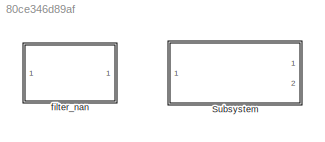
MODEL slx_80ce346d89af
KIND library
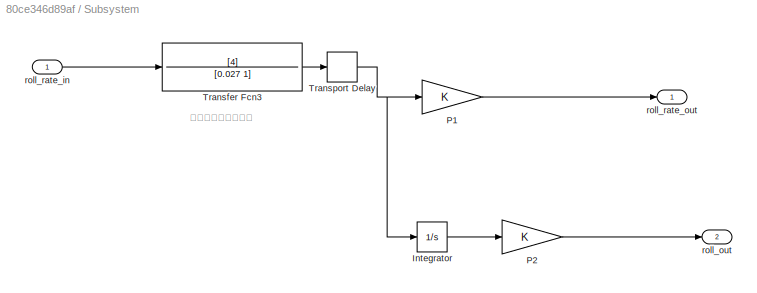
BLOCK [SubSystem] Subsystem
  Ports = [1, 2]
  RequestExecContextInheritance = off
BLOCK [Integrator] Subsystem/Integrator
  Ports = [1, 1]
BLOCK [Gain] Subsystem/P1
  OutDataTypeStr = Inherit: Inherit via internal rule
  ParamDataTypeStr = Inherit: Inherit via internal rule
  SaturateOnIntegerOverflow = off
BLOCK [Gain] Subsystem/P2
  OutDataTypeStr = Inherit: Inherit via internal rule
  ParamDataTypeStr = Inherit: Inherit via internal rule
  SaturateOnIntegerOverflow = off
BLOCK [TransferFcn] Subsystem/Transfer Fcn3
  AbsoluteTolerance = 1e-19
  Denominator = [0.027 1]
  Numerator = [4]
BLOCK [TransportDelay] Subsystem/Transport Delay
  DelayTime = 0.02606
  Ports = [1, 1]
BLOCK [Outport] Subsystem/roll_out
  IconDisplay = Port number
  Port = 2
BLOCK [Inport] Subsystem/roll_rate_in
  IconDisplay = Port number
BLOCK [Outport] Subsystem/roll_rate_out
  IconDisplay = Port number
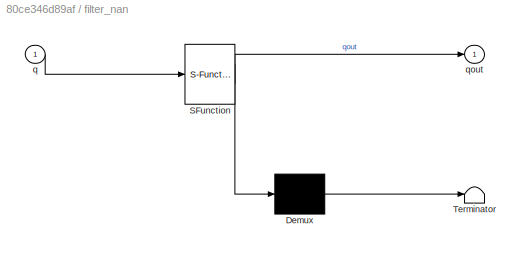
BLOCK [SubSystem] filter_nan
  ErrorFcn = Stateflow.Translate.translate
  PermitHierarchicalResolution = ExplicitOnly
  Ports = [1, 1]
  RequestExecContextInheritance = off
  SFBlockType = MATLAB Function
  TreatAsAtomicUnit = on
BLOCK [Demux] filter_nan/ Demux 
  Outputs = 1
  Ports = [1, 1]
BLOCK [S-Function] filter_nan/ SFunction 
  EnableBusSupport = off
  FunctionName = sf_sfun
  PortCounts = [1 2]
  Ports = [1, 2]
  Tag = Stateflow S-Function Lib_SimpleCopter 43
BLOCK [Terminator] filter_nan/ Terminator 
BLOCK [Inport] filter_nan/q
  IconDisplay = Port number
BLOCK [Outport] filter_nan/qout
  IconDisplay = Port number
ANNOTATION Subsystem: 应该至少是二阶系统
LINE Subsystem/Integrator:1 -> Subsystem/P2:1
LINE Subsystem/P1:1 -> Subsystem/roll_rate_out:1
LINE Subsystem/P2:1 -> Subsystem/roll_out:1
LINE Subsystem/Transfer Fcn3:1 -> Subsystem/Transport Delay:1
NET Subsystem/Transport Delay:1 -> Subsystem/Integrator:1, Subsystem/P1:1
LINE Subsystem/roll_rate_in:1 -> Subsystem/Transfer Fcn3:1
note: NET lines group one-source signal fan-out (src -> all destinations, sorted); 1:1 wires keep LINE
CHART filter_nan states=1 transitions=1
  STATE_LABEL 'eML_blk_kernel()'
  STATE_LABEL 'SCRIPT:\nfunction qout=filter_nan(q)\n%#codegen\nif isnan(q)\nqout=0;\nelse\n    qout=q;\nend\n'
